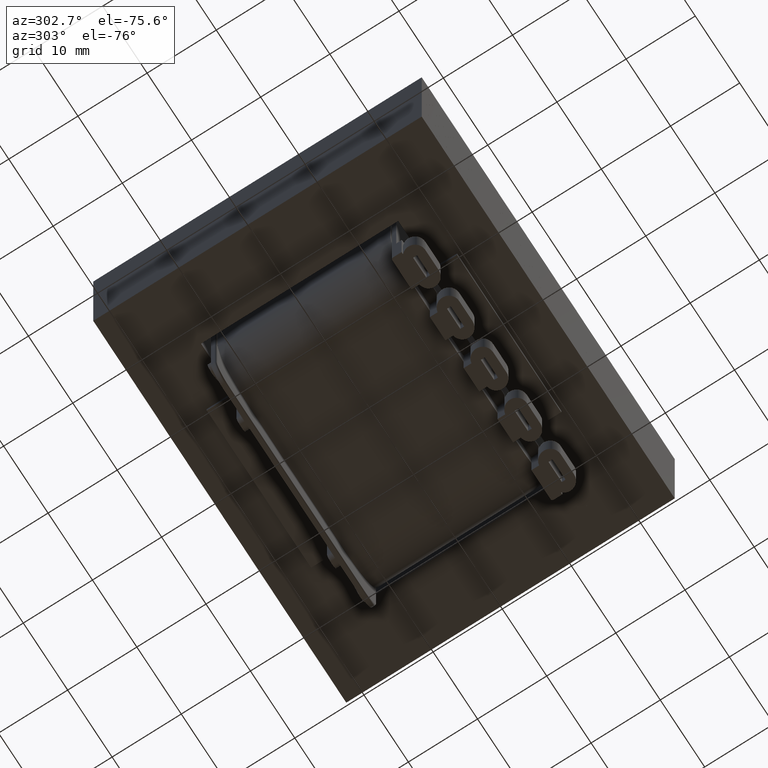
[diagram: clean part render]
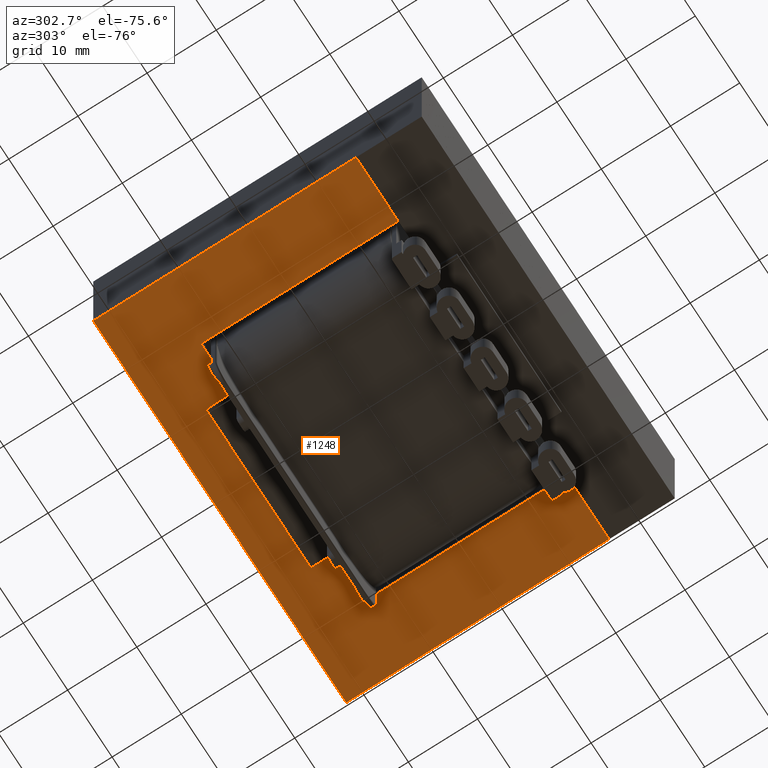
[diagram: same view with one face highlighted and labeled with its STEP entity id]
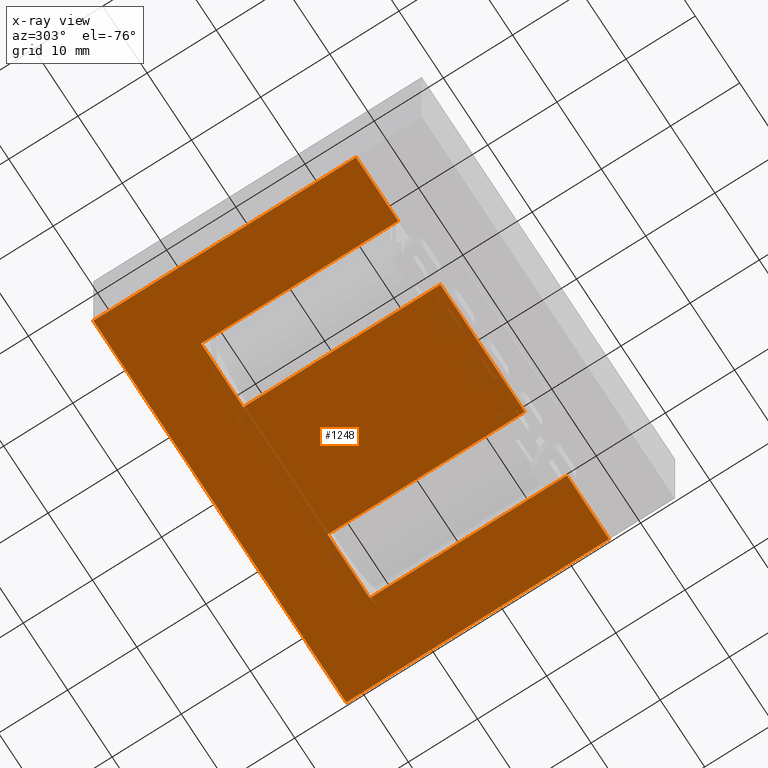
[diagram: x-ray of the same camera — body ghosted, the highlighted face saturated]
A machine part, auxiliary view. The second image highlights one B-rep face of the part: STEP entity #1248.
The next image is the same camera in x-ray: the body ghosted, the highlighted face saturated — about 5% of this face is hidden behind the body in this view.
In plain terms, the highlighted planar face has unit normal (0, 0, 1).
Its self-contained STEP definition (entity closure, byte-faithful):
#15 = CARTESIAN_POINT ( 'NONE',  ( -19.00000000000000000, -9.500000000000003553, 0.000000000000000000 ) ) ;
#26 = VERTEX_POINT ( 'NONE', #8563 ) ;
#43 = ORIENTED_EDGE ( 'NONE', *, *, #5677, .T. ) ;
#58 = EDGE_CURVE ( 'NONE', #8145, #7570, #820, .T. ) ;
#120 = ORIENTED_EDGE ( 'NONE', *, *, #1206, .F. ) ;
#215 = VECTOR ( 'NONE', #1227, 1000.000000000000000 ) ;
#408 = CARTESIAN_POINT ( 'NONE',  ( -28.50000000000000355, 18.99999999999999289, 0.000000000000000000 ) ) ;
#480 = CARTESIAN_POINT ( 'NONE',  ( -9.500000000000000000, -9.500000000000003553, 0.000000000000000000 ) ) ;
#520 = EDGE_CURVE ( 'NONE', #6124, #8413, #5547, .T. ) ;
#642 = EDGE_CURVE ( 'NONE', #6124, #11727, #10497, .T. ) ;
#820 = LINE ( 'NONE', #9440, #11644 ) ;
#1001 = CARTESIAN_POINT ( 'NONE',  ( 9.499999999999992895, 18.99999999999999645, 0.000000000000000000 ) ) ;
#1021 = ORIENTED_EDGE ( 'NONE', *, *, #58, .T. ) ;
#1084 = CARTESIAN_POINT ( 'NONE',  ( -19.00000000000000711, 18.99999999999999289, 0.000000000000000000 ) ) ;
#1103 = DIRECTION ( 'NONE',  ( 1.000000000000000000, -1.826024711554533420E-16, 0.000000000000000000 ) ) ;
#1201 = DIRECTION ( 'NONE',  ( 9.130123557772670799E-17, -1.000000000000000000, 0.000000000000000000 ) ) ;
#1206 = EDGE_CURVE ( 'NONE', #9505, #26, #5555, .T. ) ;
#1227 = DIRECTION ( 'NONE',  ( 3.043374519257556522E-16, -1.000000000000000000, 0.000000000000000000 ) ) ;
#1248 = ADVANCED_FACE ( 'NONE', ( #13650 ), #4667, .F. ) ;
#1492 = ORIENTED_EDGE ( 'NONE', *, *, #642, .F. ) ;
#2353 = VERTEX_POINT ( 'NONE', #6835 ) ;
#2384 = CARTESIAN_POINT ( 'NONE',  ( 28.50000000000000000, 19.00000000000000000, 0.000000000000000000 ) ) ;
#2402 = LINE ( 'NONE', #10235, #7859 ) ;
#2550 = VECTOR ( 'NONE', #13116, 1000.000000000000000 ) ;
#2641 = LINE ( 'NONE', #11214, #6185 ) ;
#2677 = VECTOR ( 'NONE', #12987, 1000.000000000000000 ) ;
#2700 = VECTOR ( 'NONE', #1103, 1000.000000000000000 ) ;
#3380 = CARTESIAN_POINT ( 'NONE',  ( 19.00000000000000355, 19.00000000000000000, 0.000000000000000000 ) ) ;
#3403 = LINE ( 'NONE', #4431, #11587 ) ;
#3452 = VERTEX_POINT ( 'NONE', #1084 ) ;
#3515 = CARTESIAN_POINT ( 'NONE',  ( 9.500000000000001776, -9.500000000000003553, 0.000000000000000000 ) ) ;
#3725 = VECTOR ( 'NONE', #4159, 1000.000000000000000 ) ;
#4004 = LINE ( 'NONE', #12912, #2677 ) ;
#4159 = DIRECTION ( 'NONE',  ( -1.000000000000000000, -1.826024711554533667E-16, 0.000000000000000000 ) ) ;
#4240 = EDGE_CURVE ( 'NONE', #3452, #6265, #10593, .T. ) ;
#4292 = LINE ( 'NONE', #13302, #2700 ) ;
#4431 = CARTESIAN_POINT ( 'NONE',  ( -28.50000000000000000, -5.204170427930420494E-15, 0.000000000000000000 ) ) ;
#4587 = LINE ( 'NONE', #12135, #3725 ) ;
#4656 = ORIENTED_EDGE ( 'NONE', *, *, #6748, .T. ) ;
#4667 = PLANE ( 'NONE',  #10029 ) ;
#4865 = ORIENTED_EDGE ( 'NONE', *, *, #7812, .F. ) ;
#4928 = ORIENTED_EDGE ( 'NONE', *, *, #10092, .T. ) ;
#5357 = VECTOR ( 'NONE', #10079, 1000.000000000000000 ) ;
#5547 = LINE ( 'NONE', #11239, #215 ) ;
#5555 = LINE ( 'NONE', #7499, #5357 ) ;
#5677 = EDGE_CURVE ( 'NONE', #8413, #26, #4292, .T. ) ;
#6124 = VERTEX_POINT ( 'NONE', #1001 ) ;
#6185 = VECTOR ( 'NONE', #1201, 1000.000000000000000 ) ;
#6265 = VERTEX_POINT ( 'NONE', #408 ) ;
#6748 = EDGE_CURVE ( 'NONE', #8685, #12173, #2641, .T. ) ;
#6835 = CARTESIAN_POINT ( 'NONE',  ( -28.49999999999999645, -19.00000000000001066, 0.000000000000000000 ) ) ;
#6923 = CARTESIAN_POINT ( 'NONE',  ( -9.500000000000007105, 18.99999999999999645, 0.000000000000000000 ) ) ;
#6981 = DIRECTION ( 'NONE',  ( -1.000000000000000000, -1.217349807703022362E-16, 0.000000000000000000 ) ) ;
#7054 = CARTESIAN_POINT ( 'NONE',  ( 0.000000000000000000, 0.000000000000000000, 0.000000000000000000 ) ) ;
#7284 = ORIENTED_EDGE ( 'NONE', *, *, #12134, .F. ) ;
#7499 = CARTESIAN_POINT ( 'NONE',  ( 19.00000000000000355, 0.000000000000000000, 0.000000000000000000 ) ) ;
#7570 = VERTEX_POINT ( 'NONE', #480 ) ;
#7634 = ORIENTED_EDGE ( 'NONE', *, *, #520, .T. ) ;
#7777 = DIRECTION ( 'NONE',  ( 1.826024711554533420E-16, -1.000000000000000000, 0.000000000000000000 ) ) ;
#7812 = EDGE_CURVE ( 'NONE', #11727, #7570, #8650, .T. ) ;
#7859 = VECTOR ( 'NONE', #11538, 1000.000000000000000 ) ;
#8145 = VERTEX_POINT ( 'NONE', #15 ) ;
#8371 = CARTESIAN_POINT ( 'NONE',  ( -9.500000000000001776, -2.312964634635743450E-15, 0.000000000000000000 ) ) ;
#8413 = VERTEX_POINT ( 'NONE', #3515 ) ;
#8563 = CARTESIAN_POINT ( 'NONE',  ( 19.00000000000000355, -9.500000000000005329, 0.000000000000000000 ) ) ;
#8604 = CARTESIAN_POINT ( 'NONE',  ( -2.312964634635741872E-15, 18.99999999999999645, 0.000000000000000000 ) ) ;
#8644 = EDGE_CURVE ( 'NONE', #12173, #2353, #4587, .T. ) ;
#8650 = LINE ( 'NONE', #8371, #2550 ) ;
#8685 = VERTEX_POINT ( 'NONE', #2384 ) ;
#9121 = DIRECTION ( 'NONE',  ( -0.000000000000000000, 0.000000000000000000, 1.000000000000000000 ) ) ;
#9162 = CARTESIAN_POINT ( 'NONE',  ( 28.50000000000000711, -19.00000000000000000, 0.000000000000000000 ) ) ;
#9440 = CARTESIAN_POINT ( 'NONE',  ( 0.000000000000000000, -9.500000000000003553, 0.000000000000000000 ) ) ;
#9505 = VERTEX_POINT ( 'NONE', #3380 ) ;
#9892 = VECTOR ( 'NONE', #10675, 1000.000000000000000 ) ;
#10010 = VECTOR ( 'NONE', #6981, 1000.000000000000000 ) ;
#10029 = AXIS2_PLACEMENT_3D ( 'NONE', #7054, #9121, #10225 ) ;
#10079 = DIRECTION ( 'NONE',  ( 0.000000000000000000, -1.000000000000000000, 0.000000000000000000 ) ) ;
#10092 = EDGE_CURVE ( 'NONE', #3452, #8145, #2402, .T. ) ;
#10215 = EDGE_LOOP ( 'NONE', ( #1492, #7634, #43, #120, #11726, #4656, #11346, #7284, #12660, #4928, #1021, #4865 ) ) ;
#10225 = DIRECTION ( 'NONE',  ( 1.000000000000000000, 0.000000000000000000, 0.000000000000000000 ) ) ;
#10235 = CARTESIAN_POINT ( 'NONE',  ( -19.00000000000000355, -4.625929269271486900E-15, 0.000000000000000000 ) ) ;
#10497 = LINE ( 'NONE', #11600, #10010 ) ;
#10593 = LINE ( 'NONE', #8604, #9892 ) ;
#10624 = DIRECTION ( 'NONE',  ( 1.000000000000000000, 0.000000000000000000, 0.000000000000000000 ) ) ;
#10675 = DIRECTION ( 'NONE',  ( -1.000000000000000000, -1.217349807703022362E-16, 0.000000000000000000 ) ) ;
#11214 = CARTESIAN_POINT ( 'NONE',  ( 28.50000000000000355, 2.602085213965211430E-15, 0.000000000000000000 ) ) ;
#11239 = CARTESIAN_POINT ( 'NONE',  ( 9.499999999999998224, 2.891205793294678228E-15, 0.000000000000000000 ) ) ;
#11346 = ORIENTED_EDGE ( 'NONE', *, *, #8644, .T. ) ;
#11538 = DIRECTION ( 'NONE',  ( 2.434699615406045218E-16, -1.000000000000000000, 0.000000000000000000 ) ) ;
#11587 = VECTOR ( 'NONE', #7777, 1000.000000000000000 ) ;
#11600 = CARTESIAN_POINT ( 'NONE',  ( -2.312964634635741872E-15, 18.99999999999999645, 0.000000000000000000 ) ) ;
#11644 = VECTOR ( 'NONE', #10624, 1000.000000000000000 ) ;
#11726 = ORIENTED_EDGE ( 'NONE', *, *, #14325, .F. ) ;
#11727 = VERTEX_POINT ( 'NONE', #6923 ) ;
#12134 = EDGE_CURVE ( 'NONE', #6265, #2353, #3403, .T. ) ;
#12135 = CARTESIAN_POINT ( 'NONE',  ( 3.469446951953614978E-15, -19.00000000000000711, 0.000000000000000000 ) ) ;
#12173 = VERTEX_POINT ( 'NONE', #9162 ) ;
#12660 = ORIENTED_EDGE ( 'NONE', *, *, #4240, .F. ) ;
#12912 = CARTESIAN_POINT ( 'NONE',  ( -2.312964634635741872E-15, 18.99999999999999645, 0.000000000000000000 ) ) ;
#12987 = DIRECTION ( 'NONE',  ( -1.000000000000000000, -1.217349807703022362E-16, 0.000000000000000000 ) ) ;
#13116 = DIRECTION ( 'NONE',  ( 2.434699615406045218E-16, -1.000000000000000000, 0.000000000000000000 ) ) ;
#13302 = CARTESIAN_POINT ( 'NONE',  ( -1.734723475976807094E-15, -9.500000000000001776, 0.000000000000000000 ) ) ;
#13650 = FACE_OUTER_BOUND ( 'NONE', #10215, .T. ) ;
#14325 = EDGE_CURVE ( 'NONE', #8685, #9505, #4004, .T. ) ;